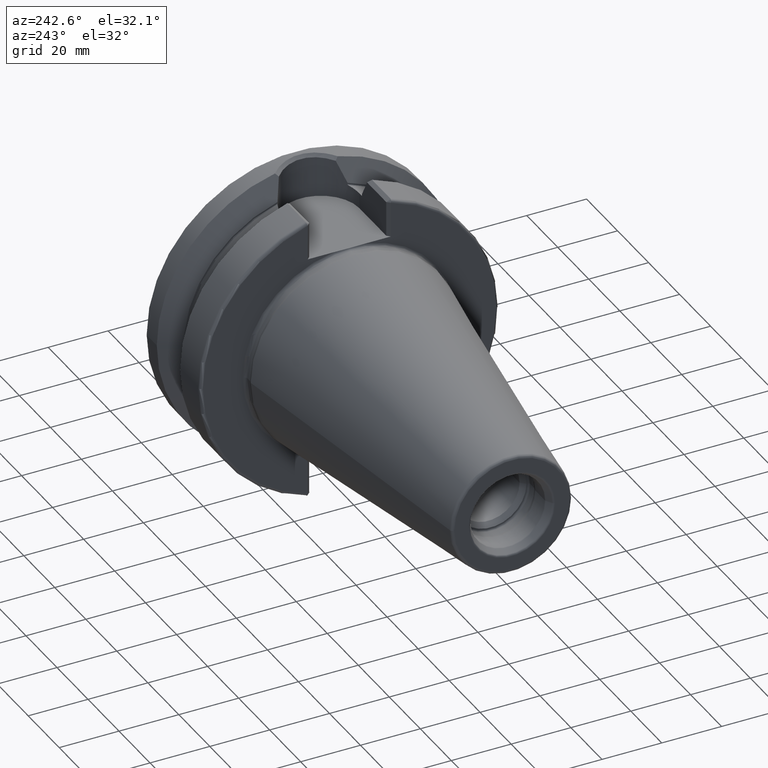
[diagram: clean part render]
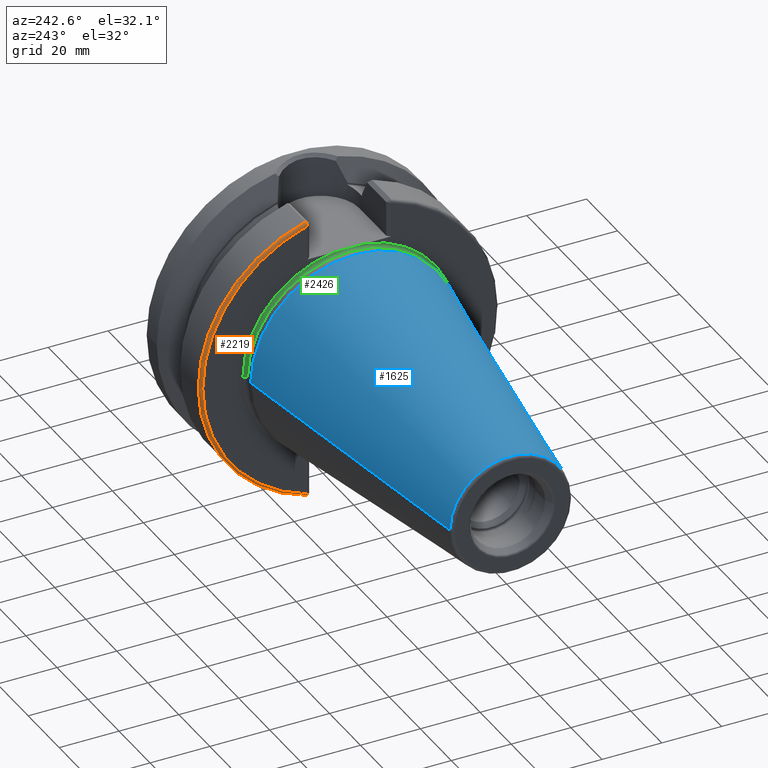
[diagram: same view with three faces highlighted in distinct colors, each labeled with its STEP entity id]
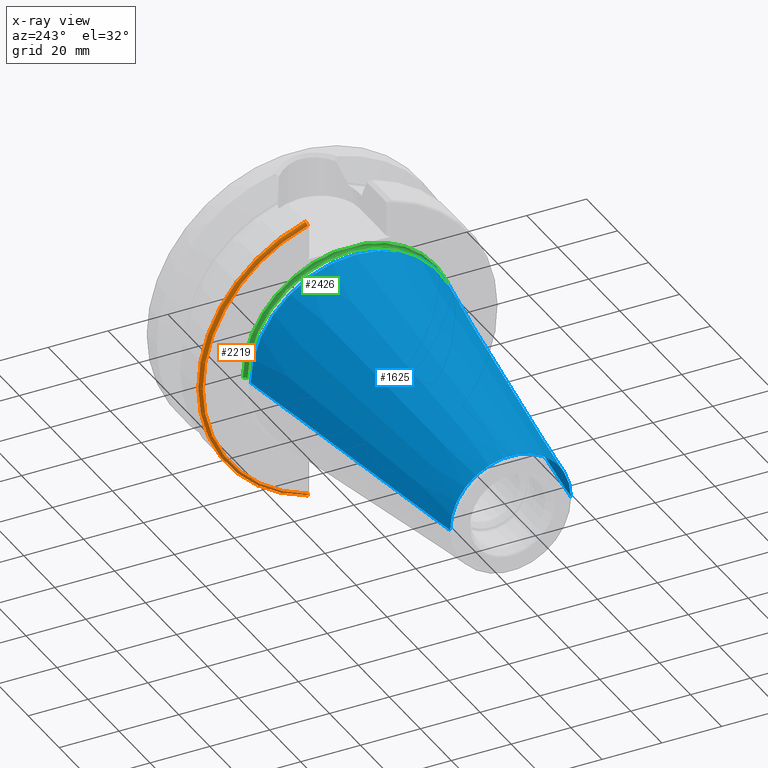
[diagram: x-ray of the same camera — body ghosted, the three highlighted faces saturated]
A machine part, auxiliary view with three faces highlighted in distinct colors.
The next image is the same camera in x-ray (body ghosted, the three faces saturated) — at least one of them is partly hidden behind the body in this view.
Their STEP definitions:

[orange] entity #2219 — the highlighted toroidal blend (fillet) surface has major radius 48.9875 mm and minor (blend) radius 1 mm.
#227=CARTESIAN_POINT('',(4.E0,0.E0,0.E0));
#228=DIRECTION('',(-1.E0,0.E0,0.E0));
#229=DIRECTION('',(0.E0,2.837968869610E-1,9.588844179312E-1));
#230=AXIS2_PLACEMENT_3D('',#227,#228,#229);
#571=CARTESIAN_POINT('',(3.999999999701E0,1.386327248661E1,-4.802665840350E1));
#572=CARTESIAN_POINT('',(3.940459880706E0,1.386328759388E1,-4.802665404266E1));
#573=CARTESIAN_POINT('',(3.818524379244E0,1.386408249541E1,-4.801536526032E1));
#574=CARTESIAN_POINT('',(3.632802361895E0,1.386813157488E1,-4.795971866684E1));
#575=CARTESIAN_POINT('',(3.454761225176E0,1.387449273833E1,-4.786347597167E1));
#576=CARTESIAN_POINT('',(3.294931333912E0,1.388240594639E1,-4.772857875800E1));
#577=CARTESIAN_POINT('',(3.162899754239E0,1.389052093324E1,-4.756045881447E1));
#578=CARTESIAN_POINT('',(3.066796699794E0,1.389728433203E1,-4.736907635249E1));
#579=CARTESIAN_POINT('',(3.011034865800E0,1.390161469890E1,-4.716733990672E1));
#580=CARTESIAN_POINT('',(2.999993172884E0,1.390258355640E1,-4.703686424349E1));
#581=CARTESIAN_POINT('',(2.999993172884E0,1.390249317248E1,-4.697335004621E1));
#583=CARTESIAN_POINT('',(4.E0,1.390251954399E1,4.697334463905E1));
#584=DIRECTION('',(0.E0,9.588842998530E-1,-2.837972859196E-1));
#585=DIRECTION('',(-1.E0,-1.200817223435E-12,-4.057199021190E-12));
#586=AXIS2_PLACEMENT_3D('',#583,#584,#585);
#588=CARTESIAN_POINT('',(3.E0,0.E0,0.E0));
#589=DIRECTION('',(-1.E0,0.E0,0.E0));
#590=DIRECTION('',(0.E0,2.837969049058E-1,9.588844126201E-1));
#591=AXIS2_PLACEMENT_3D('',#588,#589,#590);
#1491=CARTESIAN_POINT('',(3.E0,1.390251954398E1,4.697334463905E1));
#1492=CARTESIAN_POINT('',(4.E0,1.418631682991E1,4.793222893890E1));
#1493=VERTEX_POINT('',#1491);
#1494=VERTEX_POINT('',#1492);
#1505=CARTESIAN_POINT('',(2.999993172884E0,1.390249317248E1,-4.697335004621E1));
#1507=VERTEX_POINT('',#1505);
#1509=VERTEX_POINT('',#571);
#2206=CARTESIAN_POINT('',(4.E0,0.E0,0.E0));
#2207=DIRECTION('',(1.E0,0.E0,0.E0));
#2208=DIRECTION('',(0.E0,-1.E0,0.E0));
#2209=AXIS2_PLACEMENT_3D('',#2206,#2207,#2208);
#2210=TOROIDAL_SURFACE('',#2209,4.89875E1,1.E0);
#2212=ORIENTED_EDGE('',*,*,#2211,.F.);
#2213=ORIENTED_EDGE('',*,*,#1884,.F.);
#2215=ORIENTED_EDGE('',*,*,#2214,.F.);
#2216=ORIENTED_EDGE('',*,*,#1721,.T.);
#2217=EDGE_LOOP('',(#2212,#2213,#2215,#2216));
#2218=FACE_OUTER_BOUND('',#2217,.F.);
#2219=ADVANCED_FACE('',(#2218),#2210,.T.);
#231=CIRCLE('',#230,4.99875E1);
#582=B_SPLINE_CURVE_WITH_KNOTS('',3,(#571,#572,#573,#574,#575,#576,#577,#578,
#579,#580,#581),.UNSPECIFIED.,.F.,.F.,(4,1,1,1,1,1,1,1,4),(0.E0,1.25E-1,2.5E-1,
3.75E-1,5.E-1,6.25E-1,7.5E-1,8.75E-1,1.E0),.UNSPECIFIED.);
#587=CIRCLE('',#586,1.E0);
#592=CIRCLE('',#591,4.89875E1);
#1721=EDGE_CURVE('',#1493,#1507,#592,.T.);
#1884=EDGE_CURVE('',#1494,#1509,#231,.T.);
#2211=EDGE_CURVE('',#1509,#1507,#582,.T.);
#2214=EDGE_CURVE('',#1493,#1494,#587,.T.);

[blue] entity #1625 — the highlighted conical surface has half-angle 8.298 deg.
#37=CARTESIAN_POINT('',(-1.009443186692E2,0.E0,0.E0));
#38=DIRECTION('',(1.E0,0.E0,0.E0));
#39=DIRECTION('',(0.E0,1.E0,0.E0));
#40=AXIS2_PLACEMENT_3D('',#37,#38,#39);
#42=CARTESIAN_POINT('',(-6.191906162850E-1,0.E0,0.E0));
#43=DIRECTION('',(1.E0,0.E0,0.E0));
#44=DIRECTION('',(0.E0,1.E0,0.E0));
#45=AXIS2_PLACEMENT_3D('',#42,#43,#44);
#47=DIRECTION('',(-9.895312636440E-1,-1.443186691705E-1,0.E0));
#48=VECTOR('',#47,1.013865167670E2);
#49=CARTESIAN_POINT('',(-6.191906162849E-1,3.483469384295E1,0.E0));
#50=LINE('',#49,#48);
#51=DIRECTION('',(-9.895312636440E-1,1.443186691705E-1,0.E0));
#52=VECTOR('',#51,1.013865167670E2);
#53=CARTESIAN_POINT('',(-6.191906162849E-1,-3.483469384295E1,0.E0));
#54=LINE('',#53,#52);
#1303=CARTESIAN_POINT('',(-1.009443186692E2,2.020272667130E1,0.E0));
#1305=VERTEX_POINT('',#1303);
#1307=CARTESIAN_POINT('',(-1.009443186692E2,-2.020272667130E1,0.E0));
#1309=VERTEX_POINT('',#1307);
#1522=CARTESIAN_POINT('',(-6.191906162849E-1,3.483469384295E1,0.E0));
#1523=VERTEX_POINT('',#1522);
#1524=CARTESIAN_POINT('',(-6.191906162849E-1,-3.483469384295E1,0.E0));
#1525=VERTEX_POINT('',#1524);
#1611=CARTESIAN_POINT('',(-5.078175464273E1,0.E0,0.E0));
#1612=DIRECTION('',(1.E0,0.E0,0.E0));
#1613=DIRECTION('',(0.E0,-1.E0,0.E0));
#1614=AXIS2_PLACEMENT_3D('',#1611,#1612,#1613);
#1615=CONICAL_SURFACE('',#1614,2.751871025712E1,8.297826828206E0);
#1617=ORIENTED_EDGE('',*,*,#1616,.F.);
#1619=ORIENTED_EDGE('',*,*,#1618,.T.);
#1621=ORIENTED_EDGE('',*,*,#1620,.T.);
#1622=ORIENTED_EDGE('',*,*,#1604,.F.);
#1623=EDGE_LOOP('',(#1617,#1619,#1621,#1622));
#1624=FACE_OUTER_BOUND('',#1623,.F.);
#1625=ADVANCED_FACE('',(#1624),#1615,.T.);
#41=CIRCLE('',#40,2.020272667130E1);
#46=CIRCLE('',#45,3.483469384295E1);
#1604=EDGE_CURVE('',#1305,#1309,#41,.T.);
#1616=EDGE_CURVE('',#1523,#1305,#50,.T.);
#1618=EDGE_CURVE('',#1523,#1525,#46,.T.);
#1620=EDGE_CURVE('',#1525,#1309,#54,.T.);

[green] entity #2426 — the highlighted toroidal blend (fillet) surface has major radius 35.575 mm and minor (blend) radius 1 mm.
#78=CARTESIAN_POINT('',(2.E0,0.E0,0.E0));
#79=DIRECTION('',(1.E0,0.E0,0.E0));
#80=DIRECTION('',(0.E0,1.E0,0.E0));
#81=AXIS2_PLACEMENT_3D('',#78,#79,#80);
#101=CARTESIAN_POINT('',(2.E0,3.5575E1,0.E0));
#102=DIRECTION('',(0.E0,0.E0,-1.E0));
#103=DIRECTION('',(1.E0,0.E0,0.E0));
#104=AXIS2_PLACEMENT_3D('',#101,#102,#103);
#106=CARTESIAN_POINT('',(2.E0,-3.5575E1,0.E0));
#107=DIRECTION('',(0.E0,0.E0,1.E0));
#108=DIRECTION('',(1.E0,0.E0,0.E0));
#109=AXIS2_PLACEMENT_3D('',#106,#107,#108);
#704=CARTESIAN_POINT('',(3.E0,0.E0,0.E0));
#705=DIRECTION('',(1.E0,0.E0,0.E0));
#706=DIRECTION('',(0.E0,1.E0,0.E0));
#707=AXIS2_PLACEMENT_3D('',#704,#705,#706);
#709=CARTESIAN_POINT('',(3.E0,-5.151759408202E0,3.52E1));
#710=CARTESIAN_POINT('',(3.E0,-4.661054534839E0,3.52E1));
#711=CARTESIAN_POINT('',(2.985185415825E0,-3.679726334521E0,3.52E1));
#712=CARTESIAN_POINT('',(2.950323079566E0,-2.207949548308E0,3.52E1));
#713=CARTESIAN_POINT('',(2.926055980582E0,-7.360772184078E-1,3.52E1));
#714=CARTESIAN_POINT('',(2.926055295138E0,7.360096394602E-1,3.52E1));
#715=CARTESIAN_POINT('',(2.950321957583E0,2.207902450145E0,3.52E1));
#716=CARTESIAN_POINT('',(2.985185074234E0,3.679708044881E0,3.52E1));
#717=CARTESIAN_POINT('',(3.E0,4.661048861273E0,3.52E1));
#718=CARTESIAN_POINT('',(3.E0,5.151759408202E0,3.52E1));
#720=CARTESIAN_POINT('',(3.E0,0.E0,0.E0));
#721=DIRECTION('',(1.E0,0.E0,0.E0));
#722=DIRECTION('',(0.E0,-1.448140381786E-1,9.894588896697E-1));
#723=AXIS2_PLACEMENT_3D('',#720,#721,#722);
#1375=CARTESIAN_POINT('',(3.E0,3.5575E1,0.E0));
#1376=CARTESIAN_POINT('',(2.E0,3.4575E1,0.E0));
#1377=VERTEX_POINT('',#1375);
#1378=VERTEX_POINT('',#1376);
#1381=CARTESIAN_POINT('',(3.E0,-3.5575E1,0.E0));
#1382=CARTESIAN_POINT('',(2.E0,-3.4575E1,0.E0));
#1383=VERTEX_POINT('',#1381);
#1384=VERTEX_POINT('',#1382);
#1445=CARTESIAN_POINT('',(3.E0,5.151759408202E0,3.52E1));
#1446=VERTEX_POINT('',#1445);
#1447=CARTESIAN_POINT('',(3.E0,-5.151759408202E0,3.52E1));
#1448=VERTEX_POINT('',#1447);
#2413=CARTESIAN_POINT('',(2.E0,0.E0,0.E0));
#2414=DIRECTION('',(1.E0,0.E0,0.E0));
#2415=DIRECTION('',(0.E0,-1.E0,0.E0));
#2416=AXIS2_PLACEMENT_3D('',#2413,#2414,#2415);
#2417=TOROIDAL_SURFACE('',#2416,3.5575E1,1.E0);
#2418=ORIENTED_EDGE('',*,*,#1727,.T.);
#2419=ORIENTED_EDGE('',*,*,#2391,.F.);
#2420=ORIENTED_EDGE('',*,*,#1745,.T.);
#2421=ORIENTED_EDGE('',*,*,#1705,.T.);
#2422=ORIENTED_EDGE('',*,*,#1674,.F.);
#2423=ORIENTED_EDGE('',*,*,#1702,.F.);
#2424=EDGE_LOOP('',(#2418,#2419,#2420,#2421,#2422,#2423));
#2425=FACE_OUTER_BOUND('',#2424,.F.);
#2426=ADVANCED_FACE('',(#2425),#2417,.F.);
#82=CIRCLE('',#81,3.4575E1);
#105=CIRCLE('',#104,1.E0);
#110=CIRCLE('',#109,1.E0);
#708=CIRCLE('',#707,3.5575E1);
#719=B_SPLINE_CURVE_WITH_KNOTS('',3,(#709,#710,#711,#712,#713,#714,#715,#716,
#717,#718),.UNSPECIFIED.,.F.,.F.,(4,1,1,1,1,1,1,4),(0.E0,1.428571428571E-1,
2.857142857143E-1,4.285714285714E-1,5.714285714286E-1,7.142857142857E-1,
8.571428571429E-1,1.E0),.UNSPECIFIED.);
#724=CIRCLE('',#723,3.5575E1);
#1674=EDGE_CURVE('',#1378,#1384,#82,.T.);
#1702=EDGE_CURVE('',#1377,#1378,#105,.T.);
#1705=EDGE_CURVE('',#1383,#1384,#110,.T.);
#1727=EDGE_CURVE('',#1377,#1446,#708,.T.);
#1745=EDGE_CURVE('',#1448,#1383,#724,.T.);
#2391=EDGE_CURVE('',#1448,#1446,#719,.T.);